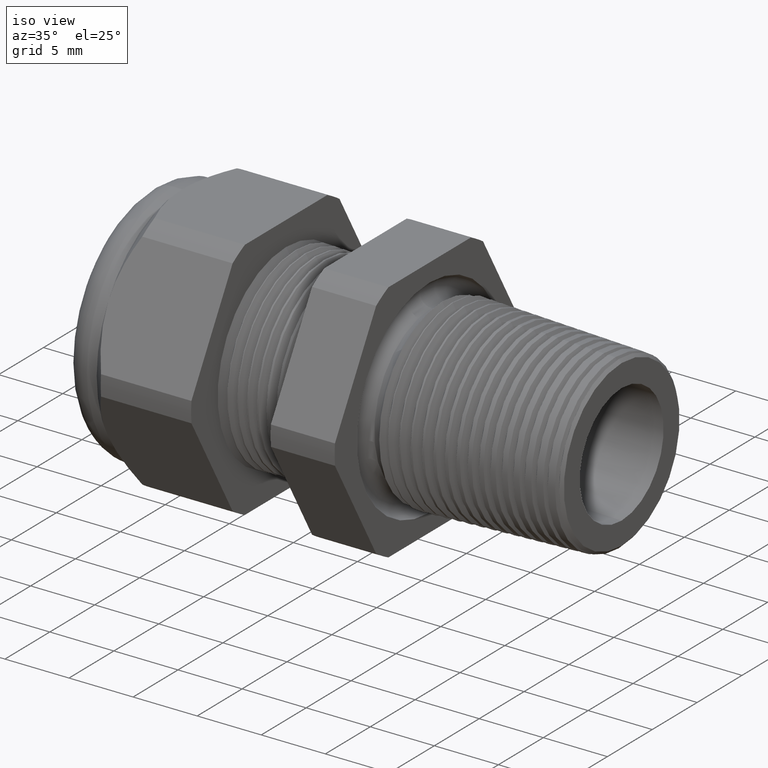
[diagram: clean part render]
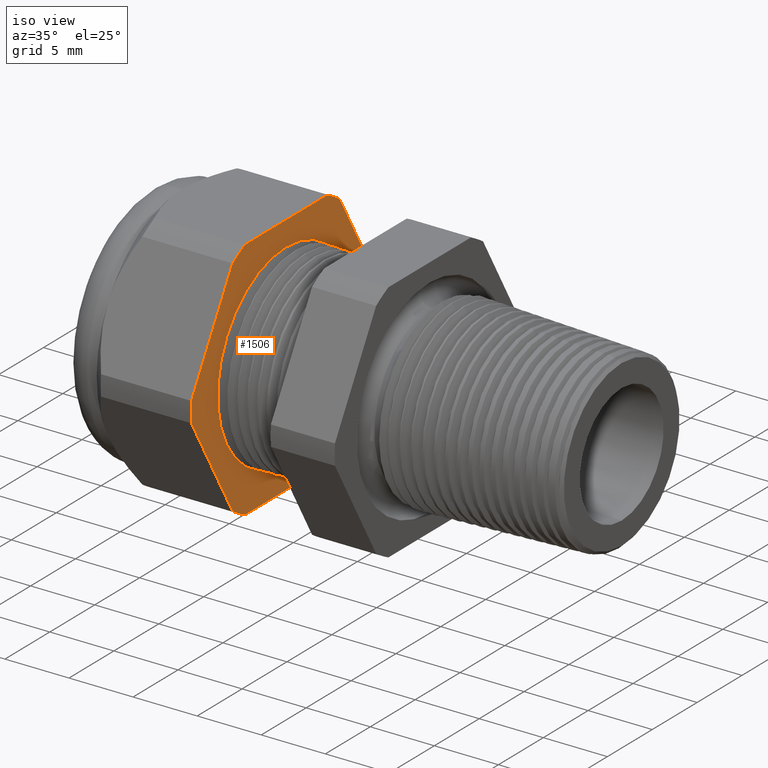
[diagram: same view with one face highlighted and labeled with its STEP entity id]
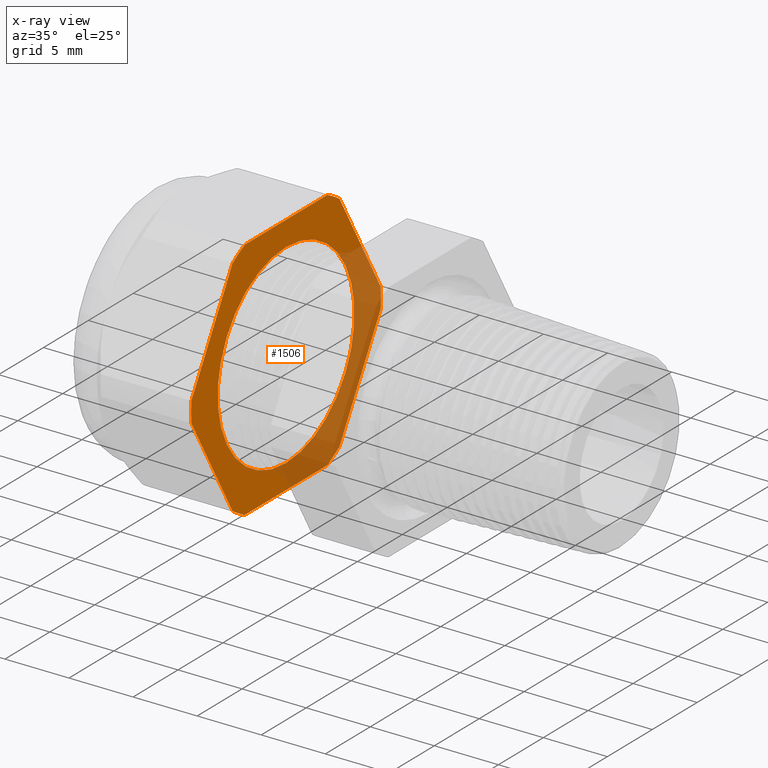
[diagram: x-ray of the same camera — body ghosted, the highlighted face saturated]
A machine part, iso view. The second image highlights one B-rep face of the part: STEP entity #1506.
The next image is the same camera in x-ray: the body ghosted, the highlighted face saturated — about 34% of this face is hidden behind the body in this view.
In plain terms, the highlighted planar face has unit normal (1, 0, 0).
Its self-contained STEP definition (entity closure, byte-faithful):
#617 = VERTEX_POINT ( 'NONE', #3119 ) ;
#619 = EDGE_CURVE ( 'NONE', #617, #620, #3182, .T. ) ;
#620 = VERTEX_POINT ( 'NONE', #3177 ) ;
#1201 = VERTEX_POINT ( 'NONE', #4301 ) ;
#1203 = EDGE_CURVE ( 'NONE', #1222, #1201, #4300, .T. ) ;
#1208 = VERTEX_POINT ( 'NONE', #4286 ) ;
#1222 = VERTEX_POINT ( 'NONE', #4319 ) ;
#1241 = VERTEX_POINT ( 'NONE', #4335 ) ;
#1250 = EDGE_CURVE ( 'NONE', #1241, #1258, #4383, .T. ) ;
#1253 = EDGE_CURVE ( 'NONE', #1273, #1208, #4373, .T. ) ;
#1258 = VERTEX_POINT ( 'NONE', #4420 ) ;
#1264 = EDGE_CURVE ( 'NONE', #1258, #1273, #4413, .T. ) ;
#1268 = EDGE_CURVE ( 'NONE', #1208, #1222, #4408, .T. ) ;
#1273 = VERTEX_POINT ( 'NONE', #4457 ) ;
#1283 = EDGE_CURVE ( 'NONE', #1305, #1291, #4443, .T. ) ;
#1288 = VERTEX_POINT ( 'NONE', #4428 ) ;
#1291 = VERTEX_POINT ( 'NONE', #4483 ) ;
#1300 = EDGE_CURVE ( 'NONE', #1291, #1310, #4469, .T. ) ;
#1305 = VERTEX_POINT ( 'NONE', #4510 ) ;
#1310 = VERTEX_POINT ( 'NONE', #4499 ) ;
#1316 = EDGE_CURVE ( 'NONE', #1310, #1241, #4492, .T. ) ;
#1320 = EDGE_CURVE ( 'NONE', #1339, #1356, #4548, .T. ) ;
#1328 = EDGE_CURVE ( 'NONE', #1201, #1339, #4533, .T. ) ;
#1334 = EDGE_CURVE ( 'NONE', #1356, #1288, #4521, .T. ) ;
#1339 = VERTEX_POINT ( 'NONE', #4563 ) ;
#1351 = EDGE_CURVE ( 'NONE', #1288, #1305, #4591, .T. ) ;
#1356 = VERTEX_POINT ( 'NONE', #4632 ) ;
#1492 = ORIENTED_EDGE ( 'NONE', *, *, #1351, .T. ) ;
#1493 = ORIENTED_EDGE ( 'NONE', *, *, #1283, .T. ) ;
#1494 = ORIENTED_EDGE ( 'NONE', *, *, #1300, .T. ) ;
#1495 = ORIENTED_EDGE ( 'NONE', *, *, #1316, .T. ) ;
#1496 = ORIENTED_EDGE ( 'NONE', *, *, #1250, .T. ) ;
#1497 = ORIENTED_EDGE ( 'NONE', *, *, #1264, .T. ) ;
#1498 = ORIENTED_EDGE ( 'NONE', *, *, #1253, .T. ) ;
#1499 = ORIENTED_EDGE ( 'NONE', *, *, #1268, .T. ) ;
#1506 = ADVANCED_FACE ( 'NONE', ( #4886, #4885 ), #4884, .T. ) ;
#1507 = EDGE_LOOP ( 'NONE', ( #1508, #1510 ) ) ;
#1508 = ORIENTED_EDGE ( 'NONE', *, *, #1509, .F. ) ;
#1509 = EDGE_CURVE ( 'NONE', #620, #617, #4879, .T. ) ;
#1510 = ORIENTED_EDGE ( 'NONE', *, *, #619, .F. ) ;
#1511 = EDGE_LOOP ( 'NONE', ( #1512, #1513, #1514, #1515, #1492, #1493, #1494, #1495, #1496, #1497, #1498, #1499 ) ) ;
#1512 = ORIENTED_EDGE ( 'NONE', *, *, #1203, .T. ) ;
#1513 = ORIENTED_EDGE ( 'NONE', *, *, #1328, .T. ) ;
#1514 = ORIENTED_EDGE ( 'NONE', *, *, #1320, .T. ) ;
#1515 = ORIENTED_EDGE ( 'NONE', *, *, #1334, .T. ) ;
#3119 = CARTESIAN_POINT ( 'NONE',  ( -0.7508661417322833900, 3.673940397442058900E-017, -0.2999999999999999900 ) ) ;
#3177 = CARTESIAN_POINT ( 'NONE',  ( -0.7508661417322833900, 0.0000000000000000000, 0.2999999999999999900 ) ) ;
#3178 = DIRECTION ( 'NONE',  ( 0.0000000000000000000, 0.0000000000000000000, -1.000000000000000000 ) ) ;
#3179 = DIRECTION ( 'NONE',  ( 1.000000000000000000, 0.0000000000000000000, 0.0000000000000000000 ) ) ;
#3180 = CARTESIAN_POINT ( 'NONE',  ( -0.7508661417322833900, 0.0000000000000000000, 0.0000000000000000000 ) ) ;
#3181 = AXIS2_PLACEMENT_3D ( 'NONE', #3180, #3179, #3178 ) ;
#3182 = CIRCLE ( 'NONE', #3181, 0.2999999999999999900 ) ;
#4286 = CARTESIAN_POINT ( 'NONE',  ( -0.7508661417322833900, 0.1806628420566884800, -0.3750000000000001100 ) ) ;
#4297 = DIRECTION ( 'NONE',  ( 0.0000000000000000000, 0.4999999999999998900, 0.8660254037844386000 ) ) ;
#4298 = VECTOR ( 'NONE', #4297, 39.37007874015748900 ) ;
#4299 = CARTESIAN_POINT ( 'NONE',  ( -0.7508661417322833900, 0.3997595264191645700, -0.05759618943233424400 ) ) ;
#4300 = LINE ( 'NONE', #4299, #4298 ) ;
#4301 = CARTESIAN_POINT ( 'NONE',  ( -0.7508661417322833900, 0.4150909474475088000, -0.03104138925901209900 ) ) ;
#4319 = CARTESIAN_POINT ( 'NONE',  ( -0.7508661417322833900, 0.2344281053908202900, -0.3439586107409879900 ) ) ;
#4335 = CARTESIAN_POINT ( 'NONE',  ( -0.7508661417322833900, -0.4150909474475088000, -0.03104138925901222700 ) ) ;
#4370 = DIRECTION ( 'NONE',  ( 0.0000000000000000000, 1.000000000000000000, 0.0000000000000000000 ) ) ;
#4371 = VECTOR ( 'NONE', #4370, 39.37007874015748100 ) ;
#4372 = CARTESIAN_POINT ( 'NONE',  ( -0.7508661417322833900, 0.2999999999999999900, -0.3750000000000001100 ) ) ;
#4373 = LINE ( 'NONE', #4372, #4371 ) ;
#4374 = DIRECTION ( 'NONE',  ( 0.0000000000000000000, 0.5000000000000000000, -0.8660254037844386000 ) ) ;
#4375 = VECTOR ( 'NONE', #4374, 39.37007874015748900 ) ;
#4376 = CARTESIAN_POINT ( 'NONE',  ( -0.7508661417322833900, -0.2497595264191644900, -0.3174038105676658100 ) ) ;
#4383 = LINE ( 'NONE', #4376, #4375 ) ;
#4404 = DIRECTION ( 'NONE',  ( 0.0000000000000000000, 0.0000000000000000000, -1.000000000000000000 ) ) ;
#4405 = DIRECTION ( 'NONE',  ( 1.000000000000000000, 0.0000000000000000000, 0.0000000000000000000 ) ) ;
#4406 = CARTESIAN_POINT ( 'NONE',  ( -0.7508661417322833900, 0.0000000000000000000, 0.0000000000000000000 ) ) ;
#4407 = AXIS2_PLACEMENT_3D ( 'NONE', #4406, #4405, #4404 ) ;
#4408 = CIRCLE ( 'NONE', #4407, 0.4162500000000000100 ) ;
#4409 = DIRECTION ( 'NONE',  ( 0.0000000000000000000, 0.0000000000000000000, -1.000000000000000000 ) ) ;
#4410 = DIRECTION ( 'NONE',  ( 1.000000000000000000, 0.0000000000000000000, 0.0000000000000000000 ) ) ;
#4411 = CARTESIAN_POINT ( 'NONE',  ( -0.7508661417322833900, 0.0000000000000000000, 0.0000000000000000000 ) ) ;
#4412 = AXIS2_PLACEMENT_3D ( 'NONE', #4411, #4410, #4409 ) ;
#4413 = CIRCLE ( 'NONE', #4412, 0.4162500000000000100 ) ;
#4420 = CARTESIAN_POINT ( 'NONE',  ( -0.7508661417322833900, -0.2344281053908202100, -0.3439586107409880500 ) ) ;
#4428 = CARTESIAN_POINT ( 'NONE',  ( -0.7508661417322833900, 0.1806628420566886700, 0.3749999999999999400 ) ) ;
#4439 = DIRECTION ( 'NONE',  ( 0.0000000000000000000, 0.0000000000000000000, -1.000000000000000000 ) ) ;
#4440 = DIRECTION ( 'NONE',  ( 1.000000000000000000, 0.0000000000000000000, 0.0000000000000000000 ) ) ;
#4441 = CARTESIAN_POINT ( 'NONE',  ( -0.7508661417322833900, 0.0000000000000000000, 0.0000000000000000000 ) ) ;
#4442 = AXIS2_PLACEMENT_3D ( 'NONE', #4441, #4440, #4439 ) ;
#4443 = CIRCLE ( 'NONE', #4442, 0.4162500000000000100 ) ;
#4457 = CARTESIAN_POINT ( 'NONE',  ( -0.7508661417322833900, -0.1806628420566883900, -0.3750000000000001100 ) ) ;
#4460 = DIRECTION ( 'NONE',  ( 0.0000000000000000000, -0.4999999999999998300, -0.8660254037844388200 ) ) ;
#4461 = VECTOR ( 'NONE', #4460, 39.37007874015748100 ) ;
#4468 = CARTESIAN_POINT ( 'NONE',  ( -0.7508661417322833900, -0.2497595264191646800, 0.3174038105676657000 ) ) ;
#4469 = LINE ( 'NONE', #4468, #4461 ) ;
#4483 = CARTESIAN_POINT ( 'NONE',  ( -0.7508661417322833900, -0.2344281053908204800, 0.3439586107409878200 ) ) ;
#4488 = DIRECTION ( 'NONE',  ( 0.0000000000000000000, 0.0000000000000000000, -1.000000000000000000 ) ) ;
#4489 = DIRECTION ( 'NONE',  ( 1.000000000000000000, 0.0000000000000000000, 0.0000000000000000000 ) ) ;
#4490 = CARTESIAN_POINT ( 'NONE',  ( -0.7508661417322833900, 0.0000000000000000000, 0.0000000000000000000 ) ) ;
#4491 = AXIS2_PLACEMENT_3D ( 'NONE', #4490, #4489, #4488 ) ;
#4492 = CIRCLE ( 'NONE', #4491, 0.4162500000000001200 ) ;
#4499 = CARTESIAN_POINT ( 'NONE',  ( -0.7508661417322833900, -0.4150909474475088500, 0.03104138925901205400 ) ) ;
#4510 = CARTESIAN_POINT ( 'NONE',  ( -0.7508661417322833900, -0.1806628420566886700, 0.3749999999999999400 ) ) ;
#4519 = CARTESIAN_POINT ( 'NONE',  ( -0.7508661417322833900, 0.0000000000000000000, 0.0000000000000000000 ) ) ;
#4520 = AXIS2_PLACEMENT_3D ( 'NONE', #4519, #4575, #4574 ) ;
#4521 = CIRCLE ( 'NONE', #4520, 0.4162500000000000100 ) ;
#4529 = DIRECTION ( 'NONE',  ( 0.0000000000000000000, 0.0000000000000000000, -1.000000000000000000 ) ) ;
#4530 = DIRECTION ( 'NONE',  ( 1.000000000000000000, 0.0000000000000000000, 0.0000000000000000000 ) ) ;
#4531 = CARTESIAN_POINT ( 'NONE',  ( -0.7508661417322833900, 0.0000000000000000000, 0.0000000000000000000 ) ) ;
#4532 = AXIS2_PLACEMENT_3D ( 'NONE', #4531, #4530, #4529 ) ;
#4533 = CIRCLE ( 'NONE', #4532, 0.4162500000000000100 ) ;
#4545 = DIRECTION ( 'NONE',  ( 0.0000000000000000000, -0.5000000000000000000, 0.8660254037844386000 ) ) ;
#4546 = VECTOR ( 'NONE', #4545, 39.37007874015748900 ) ;
#4547 = CARTESIAN_POINT ( 'NONE',  ( -0.7508661417322833900, 0.3997595264191646200, 0.05759618943233429900 ) ) ;
#4548 = LINE ( 'NONE', #4547, #4546 ) ;
#4563 = CARTESIAN_POINT ( 'NONE',  ( -0.7508661417322833900, 0.4150909474475088000, 0.03104138925901233800 ) ) ;
#4574 = DIRECTION ( 'NONE',  ( 0.0000000000000000000, 0.0000000000000000000, -1.000000000000000000 ) ) ;
#4575 = DIRECTION ( 'NONE',  ( 1.000000000000000000, 0.0000000000000000000, 0.0000000000000000000 ) ) ;
#4582 = DIRECTION ( 'NONE',  ( 0.0000000000000000000, -1.000000000000000000, 0.0000000000000000000 ) ) ;
#4583 = VECTOR ( 'NONE', #4582, 39.37007874015748100 ) ;
#4590 = CARTESIAN_POINT ( 'NONE',  ( -0.7508661417322833900, 0.2999999999999999900, 0.3749999999999999400 ) ) ;
#4591 = LINE ( 'NONE', #4590, #4583 ) ;
#4632 = CARTESIAN_POINT ( 'NONE',  ( -0.7508661417322833900, 0.2344281053908204600, 0.3439586107409878800 ) ) ;
#4875 = DIRECTION ( 'NONE',  ( 0.0000000000000000000, 0.0000000000000000000, -1.000000000000000000 ) ) ;
#4876 = DIRECTION ( 'NONE',  ( 1.000000000000000000, 0.0000000000000000000, 0.0000000000000000000 ) ) ;
#4877 = CARTESIAN_POINT ( 'NONE',  ( -0.7508661417322833900, 0.0000000000000000000, 0.0000000000000000000 ) ) ;
#4878 = AXIS2_PLACEMENT_3D ( 'NONE', #4877, #4876, #4875 ) ;
#4879 = CIRCLE ( 'NONE', #4878, 0.2999999999999999900 ) ;
#4880 = DIRECTION ( 'NONE',  ( 0.0000000000000000000, 0.0000000000000000000, -1.000000000000000000 ) ) ;
#4881 = DIRECTION ( 'NONE',  ( 1.000000000000000000, 0.0000000000000000000, 0.0000000000000000000 ) ) ;
#4882 = CARTESIAN_POINT ( 'NONE',  ( -0.7508661417322833900, 0.2999999999999999900, 0.0000000000000000000 ) ) ;
#4883 = AXIS2_PLACEMENT_3D ( 'NONE', #4882, #4881, #4880 ) ;
#4884 = PLANE ( 'NONE',  #4883 ) ;
#4885 = FACE_OUTER_BOUND ( 'NONE', #1511, .T. ) ;
#4886 = FACE_BOUND ( 'NONE', #1507, .T. ) ;